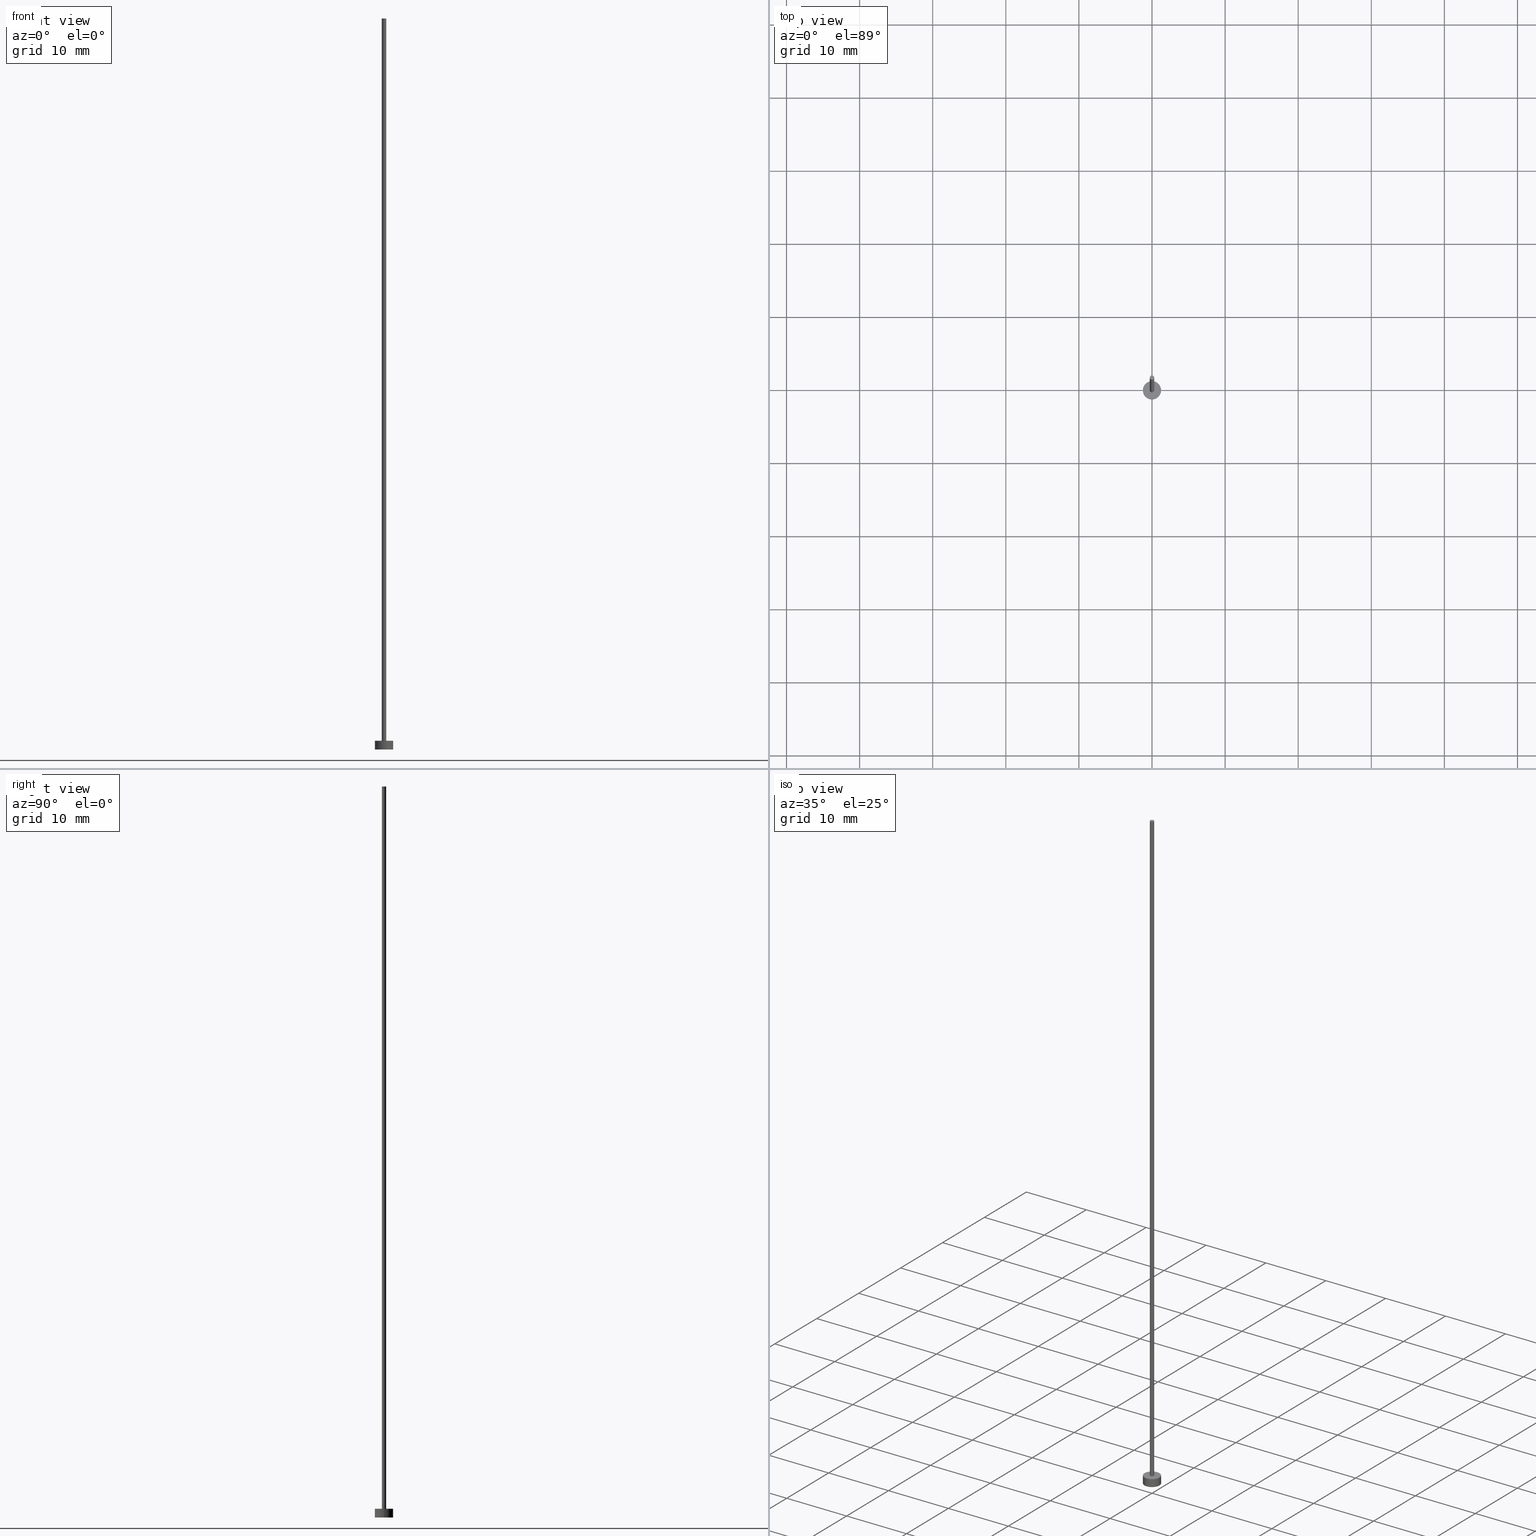
[diagram: canonical four-view strip — front | top / right | iso, engineering-drawing reading convention]
A machine part, canonical four-view strip (front | top / right | iso — engineering-drawing reading convention). The complete STEP part file that produces these views, byte-faithful:
ISO-10303-21;
HEADER;
FILE_DESCRIPTION (( 'STEP AP203' ),
    '1' );
FILE_NAME ('b7fa.STEP',
    '2026-02-06T12:45:23',
    ( '' ),
    ( '' ),
    'SwSTEP 2.0',
    'SolidWorks 2019',
    '' );
FILE_SCHEMA (( 'CONFIG_CONTROL_DESIGN' ));
ENDSEC;

DATA;
#1 = EDGE_CURVE ( 'NONE', #127, #232, #187, .T. ) ;
#2 = APPROVAL_DATE_TIME ( #209, #95 ) ;
#3 = AXIS2_PLACEMENT_3D ( 'NONE', #34, #226, #188 ) ;
#4 = APPROVAL_DATE_TIME ( #133, #201 ) ;
#5 = CIRCLE ( 'NONE', #230, 0.2999999999999999889 ) ;
#6 = APPROVAL_PERSON_ORGANIZATION ( #65, #201, #174 ) ;
#7 = DIRECTION ( 'NONE',  ( -0.000000000000000000, -0.000000000000000000, -1.000000000000000000 ) ) ;
#8 = APPROVAL ( #72, 'NEUR�EN�' ) ;
#9 = DIRECTION ( 'NONE',  ( 0.000000000000000000, 0.000000000000000000, 1.000000000000000000 ) ) ;
#10 = CARTESIAN_POINT ( 'NONE',  ( 1.250000000000000000, 1.530808498934191571E-16, 1.199999999999999956 ) ) ;
#11 = AXIS2_PLACEMENT_3D ( 'NONE', #22, #79, #64 ) ;
#12 = DIRECTION ( 'NONE',  ( -0.000000000000000000, -0.000000000000000000, -1.000000000000000000 ) ) ;
#13 = ORIENTED_EDGE ( 'NONE', *, *, #102, .T. ) ;
#14 = EDGE_CURVE ( 'NONE', #232, #111, #214, .T. ) ;
#15 = LOCAL_TIME ( 13, 45, 23.00000000000000000, #96 ) ;
#16 = VERTEX_POINT ( 'NONE', #68 ) ;
#17 = DIRECTION ( 'NONE',  ( 0.000000000000000000, 0.000000000000000000, 1.000000000000000000 ) ) ;
#18 = PERSON_AND_ORGANIZATION_ROLE ( 'creator' ) ;
#19 = CARTESIAN_POINT ( 'NONE',  ( 0.000000000000000000, 0.000000000000000000, 1.199999999999999956 ) ) ;
#20 = VERTEX_POINT ( 'NONE', #122 ) ;
#21 = DATE_AND_TIME ( #151, #46 ) ;
#22 = CARTESIAN_POINT ( 'NONE',  ( 0.000000000000000000, 0.000000000000000000, 0.000000000000000000 ) ) ;
#23 = CIRCLE ( 'NONE', #118, 1.250000000000000000 ) ;
#24 = PERSON_AND_ORGANIZATION_ROLE ( 'classification_officer' ) ;
#25 = CYLINDRICAL_SURFACE ( 'NONE', #176, 0.2999999999999999889 ) ;
#26 = PERSON_AND_ORGANIZATION_ROLE ( 'creator' ) ;
#27 = FACE_OUTER_BOUND ( 'NONE', #51, .T. ) ;
#28 = APPLICATION_CONTEXT ( 'configuration controlled 3d designs of mechanical parts and assemblies' ) ;
#29 = DIRECTION ( 'NONE',  ( -1.000000000000000000, 0.000000000000000000, 0.000000000000000000 ) ) ;
#30 = APPLICATION_PROTOCOL_DEFINITION ( 'international standard', 'config_control_design', 1994, #91 ) ;
#31 = EDGE_LOOP ( 'NONE', ( #185, #54, #166, #253 ) ) ;
#32 = ORIENTED_EDGE ( 'NONE', *, *, #14, .F. ) ;
#33 = EDGE_CURVE ( 'NONE', #40, #20, #219, .T. ) ;
#34 = CARTESIAN_POINT ( 'NONE',  ( 0.000000000000000000, 0.000000000000000000, 100.0000000000000000 ) ) ;
#35 = VERTEX_POINT ( 'NONE', #179 ) ;
#36 =( NAMED_UNIT ( * ) PLANE_ANGLE_UNIT ( ) SI_UNIT ( $, .RADIAN. ) );
#37 = DIRECTION ( 'NONE',  ( 0.000000000000000000, 0.000000000000000000, 1.000000000000000000 ) ) ;
#38 = EDGE_CURVE ( 'NONE', #35, #207, #5, .T. ) ;
#39 = PERSON_AND_ORGANIZATION ( #73, #55 ) ;
#40 = VERTEX_POINT ( 'NONE', #222 ) ;
#41 = ADVANCED_FACE ( 'NONE', ( #165, #104 ), #89, .T. ) ;
#42 = VECTOR ( 'NONE', #7, 1000.000000000000000 ) ;
#43 = CARTESIAN_POINT ( 'NONE',  ( -1.250000000000000000, 0.000000000000000000, 0.000000000000000000 ) ) ;
#44 = DIRECTION ( 'NONE',  ( -1.000000000000000000, 0.000000000000000000, 0.000000000000000000 ) ) ;
#45 = VECTOR ( 'NONE', #120, 1000.000000000000000 ) ;
#46 = LOCAL_TIME ( 13, 45, 23.00000000000000000, #235 ) ;
#47 = DIRECTION ( 'NONE',  ( 1.000000000000000000, 0.000000000000000000, 0.000000000000000000 ) ) ;
#48 = CARTESIAN_POINT ( 'NONE',  ( 0.000000000000000000, 0.000000000000000000, 100.0000000000000000 ) ) ;
#49 = AXIS2_PLACEMENT_3D ( 'NONE', #184, #205, #153 ) ;
#50 = AXIS2_PLACEMENT_3D ( 'NONE', #210, #37, #116 ) ;
#51 = EDGE_LOOP ( 'NONE', ( #227, #190, #147, #32 ) ) ;
#52 = DIRECTION ( 'NONE',  ( 1.000000000000000000, 0.000000000000000000, 0.000000000000000000 ) ) ;
#53 = DIRECTION ( 'NONE',  ( 0.000000000000000000, 0.000000000000000000, 1.000000000000000000 ) ) ;
#54 = ORIENTED_EDGE ( 'NONE', *, *, #167, .F. ) ;
#55 = ORGANIZATION ( 'NEUR�EN�', 'NEUR�EN�', '' ) ;
#56 = AXIS2_PLACEMENT_3D ( 'NONE', #221, #200, #29 ) ;
#57 = ORIENTED_EDGE ( 'NONE', *, *, #197, .F. ) ;
#58 = APPROVAL_ROLE ( '' ) ;
#59 = ORIENTED_EDGE ( 'NONE', *, *, #180, .T. ) ;
#60 = APPLICATION_PROTOCOL_DEFINITION ( 'international standard', 'config_control_design', 1994, #28 ) ;
#61 = APPROVAL_STATUS ( 'not_yet_approved' ) ;
#62 = CARTESIAN_POINT ( 'NONE',  ( 0.000000000000000000, 0.000000000000000000, 0.000000000000000000 ) ) ;
#63 = COORDINATED_UNIVERSAL_TIME_OFFSET ( 1, 0, .AHEAD. ) ;
#64 = DIRECTION ( 'NONE',  ( 1.000000000000000000, 0.000000000000000000, -0.000000000000000000 ) ) ;
#65 = PERSON_AND_ORGANIZATION ( #73, #55 ) ;
#66 = VECTOR ( 'NONE', #71, 1000.000000000000000 ) ;
#67 = EDGE_CURVE ( 'NONE', #232, #127, #23, .T. ) ;
#68 = CARTESIAN_POINT ( 'NONE',  ( 1.250000000000000000, 1.530808498934191571E-16, 0.000000000000000000 ) ) ;
#69 = LINE ( 'NONE', #10, #45 ) ;
#70 = PERSON_AND_ORGANIZATION ( #73, #55 ) ;
#71 = DIRECTION ( 'NONE',  ( -0.000000000000000000, -0.000000000000000000, -1.000000000000000000 ) ) ;
#72 = APPROVAL_STATUS ( 'not_yet_approved' ) ;
#73 = PERSON ( 'NEUR�EN�', 'NEUR�EN�', 'NEUR�EN�', ('NEUR�EN�'), ('NEUR�EN�'), ('NEUR�EN�') ) ;
#74 = CARTESIAN_POINT ( 'NONE',  ( 0.000000000000000000, 0.000000000000000000, 1.199999999999999956 ) ) ;
#75 = ORIENTED_EDGE ( 'NONE', *, *, #67, .F. ) ;
#76 = DIRECTION ( 'NONE',  ( 0.000000000000000000, 0.000000000000000000, 1.000000000000000000 ) ) ;
#77 = APPROVAL_DATE_TIME ( #109, #8 ) ;
#78 = DIRECTION ( 'NONE',  ( 0.000000000000000000, 0.000000000000000000, 1.000000000000000000 ) ) ;
#79 = DIRECTION ( 'NONE',  ( 0.000000000000000000, 0.000000000000000000, 1.000000000000000000 ) ) ;
#80 = EDGE_LOOP ( 'NONE', ( #229, #170 ) ) ;
#81 = APPROVAL_PERSON_ORGANIZATION ( #70, #8, #121 ) ;
#82 =( LENGTH_UNIT ( ) NAMED_UNIT ( * ) SI_UNIT ( .MILLI., .METRE. ) );
#83 = SECURITY_CLASSIFICATION_LEVEL ( 'unclassified' ) ;
#84 = DATE_AND_TIME ( #215, #244 ) ;
#85 = EDGE_CURVE ( 'NONE', #20, #35, #106, .T. ) ;
#86 = ADVANCED_FACE ( 'NONE', ( #198 ), #117, .T. ) ;
#87 = VECTOR ( 'NONE', #12, 1000.000000000000000 ) ;
#88 = DIRECTION ( 'NONE',  ( 1.000000000000000000, 0.000000000000000000, 0.000000000000000000 ) ) ;
#89 = PLANE ( 'NONE',  #250 ) ;
#90 = CARTESIAN_POINT ( 'NONE',  ( 0.000000000000000000, 0.000000000000000000, 0.000000000000000000 ) ) ;
#91 = APPLICATION_CONTEXT ( 'configuration controlled 3d designs of mechanical parts and assemblies' ) ;
#92 = ORIENTED_EDGE ( 'NONE', *, *, #193, .F. ) ;
#93 = CC_DESIGN_APPROVAL ( #95, ( #108 ) ) ;
#94 = CARTESIAN_POINT ( 'NONE',  ( -1.250000000000000000, 0.000000000000000000, 1.199999999999999956 ) ) ;
#95 = APPROVAL ( #61, 'NEUR�EN�' ) ;
#96 = COORDINATED_UNIVERSAL_TIME_OFFSET ( 1, 0, .AHEAD. ) ;
#97 = APPROVAL_STATUS ( 'not_yet_approved' ) ;
#98 = AXIS2_PLACEMENT_3D ( 'NONE', #148, #76, #52 ) ;
#99 = CC_DESIGN_PERSON_AND_ORGANIZATION_ASSIGNMENT ( #39, #24, ( #173 ) ) ;
#100 = CARTESIAN_POINT ( 'NONE',  ( 0.000000000000000000, 0.000000000000000000, 1.199999999999999956 ) ) ;
#101 = LINE ( 'NONE', #136, #66 ) ;
#102 = EDGE_CURVE ( 'NONE', #40, #207, #101, .T. ) ;
#103 = EDGE_CURVE ( 'NONE', #127, #16, #69, .T. ) ;
#104 = FACE_OUTER_BOUND ( 'NONE', #80, .T. ) ;
#105 = CLOSED_SHELL ( 'NONE', ( #143, #132, #237, #41, #249, #123, #86 ) ) ;
#106 = LINE ( 'NONE', #183, #42 ) ;
#107 = EDGE_LOOP ( 'NONE', ( #236, #125 ) ) ;
#108 = PRODUCT_DEFINITION_FORMATION_WITH_SPECIFIED_SOURCE ( 'LIBOVOLN�', '', #144, .NOT_KNOWN. ) ;
#109 = DATE_AND_TIME ( #113, #161 ) ;
#110 = DIRECTION ( 'NONE',  ( 1.000000000000000000, 0.000000000000000000, 0.000000000000000000 ) ) ;
#111 = VERTEX_POINT ( 'NONE', #43 ) ;
#112 = CC_DESIGN_DATE_AND_TIME_ASSIGNMENT ( #21, #191, ( #186 ) ) ;
#113 = CALENDAR_DATE ( 2026, 6, 2 ) ;
#114 = FACE_OUTER_BOUND ( 'NONE', #172, .T. ) ;
#115 = CC_DESIGN_PERSON_AND_ORGANIZATION_ASSIGNMENT ( #126, #204, ( #144 ) ) ;
#116 = DIRECTION ( 'NONE',  ( 1.000000000000000000, 0.000000000000000000, 0.000000000000000000 ) ) ;
#117 = PLANE ( 'NONE',  #182 ) ;
#118 = AXIS2_PLACEMENT_3D ( 'NONE', #178, #140, #47 ) ;
#119 = DIRECTION ( 'NONE',  ( 1.000000000000000000, 0.000000000000000000, 0.000000000000000000 ) ) ;
#120 = DIRECTION ( 'NONE',  ( -0.000000000000000000, -0.000000000000000000, -1.000000000000000000 ) ) ;
#121 = APPROVAL_ROLE ( '' ) ;
#122 = CARTESIAN_POINT ( 'NONE',  ( -0.2999999999999999889, 0.000000000000000000, 100.0000000000000000 ) ) ;
#123 = ADVANCED_FACE ( 'NONE', ( #223 ), #25, .T. ) ;
#124 = AXIS2_PLACEMENT_3D ( 'NONE', #62, #78, #156 ) ;
#125 = ORIENTED_EDGE ( 'NONE', *, *, #33, .T. ) ;
#126 = PERSON_AND_ORGANIZATION ( #73, #55 ) ;
#127 = VERTEX_POINT ( 'NONE', #199 ) ;
#128 = ORIENTED_EDGE ( 'NONE', *, *, #38, .F. ) ;
#129 = ORIENTED_EDGE ( 'NONE', *, *, #193, .T. ) ;
#130 = CALENDAR_DATE ( 2026, 6, 2 ) ;
#131 = AXIS2_PLACEMENT_3D ( 'NONE', #19, #252, #192 ) ;
#132 = ADVANCED_FACE ( 'NONE', ( #27 ), #139, .T. ) ;
#133 = DATE_AND_TIME ( #195, #158 ) ;
#134 = COORDINATED_UNIVERSAL_TIME_OFFSET ( 1, 0, .AHEAD. ) ;
#135 =( GEOMETRIC_REPRESENTATION_CONTEXT ( 3 ) GLOBAL_UNCERTAINTY_ASSIGNED_CONTEXT ( ( #169 ) ) GLOBAL_UNIT_ASSIGNED_CONTEXT ( ( #82, #36, #194 ) ) REPRESENTATION_CONTEXT ( 'NONE', 'WORKASPACE' ) );
#136 = CARTESIAN_POINT ( 'NONE',  ( 0.2999999999999999889, 3.673940397442058882E-17, 100.0000000000000000 ) ) ;
#137 = CARTESIAN_POINT ( 'NONE',  ( 0.000000000000000000, 0.000000000000000000, 100.0000000000000000 ) ) ;
#138 = CC_DESIGN_SECURITY_CLASSIFICATION ( #173, ( #108 ) ) ;
#139 = CYLINDRICAL_SURFACE ( 'NONE', #56, 1.250000000000000000 ) ;
#140 = DIRECTION ( 'NONE',  ( 0.000000000000000000, 0.000000000000000000, 1.000000000000000000 ) ) ;
#141 = PRODUCT_DEFINITION_SHAPE ( 'NONE', 'NONE',  #186 ) ;
#142 = CC_DESIGN_DATE_AND_TIME_ASSIGNMENT ( #84, #240, ( #173 ) ) ;
#143 = ADVANCED_FACE ( 'NONE', ( #181 ), #171, .T. ) ;
#144 = PRODUCT ( 'b7fa', 'b7fa', '', ( #231 ) ) ;
#145 = ORIENTED_EDGE ( 'NONE', *, *, #180, .F. ) ;
#146 = ADVANCED_BREP_SHAPE_REPRESENTATION ( 'b7fa', ( #217, #98 ), #135 ) ;
#147 = ORIENTED_EDGE ( 'NONE', *, *, #197, .T. ) ;
#148 = CARTESIAN_POINT ( 'NONE',  ( 0.000000000000000000, 0.000000000000000000, 0.000000000000000000 ) ) ;
#149 = EDGE_LOOP ( 'NONE', ( #255, #13, #129, #247 ) ) ;
#150 = APPROVAL_PERSON_ORGANIZATION ( #233, #95, #58 ) ;
#151 = CALENDAR_DATE ( 2026, 6, 2 ) ;
#152 = FACE_OUTER_BOUND ( 'NONE', #203, .T. ) ;
#153 = DIRECTION ( 'NONE',  ( -1.000000000000000000, 0.000000000000000000, 0.000000000000000000 ) ) ;
#154 = EDGE_LOOP ( 'NONE', ( #128, #92 ) ) ;
#155 = COORDINATED_UNIVERSAL_TIME_OFFSET ( 1, 0, .AHEAD. ) ;
#156 = DIRECTION ( 'NONE',  ( 1.000000000000000000, 0.000000000000000000, 0.000000000000000000 ) ) ;
#157 = AXIS2_PLACEMENT_3D ( 'NONE', #163, #245, #88 ) ;
#158 = LOCAL_TIME ( 13, 45, 23.00000000000000000, #134 ) ;
#159 = SHAPE_DEFINITION_REPRESENTATION ( #141, #146 ) ;
#160 = CIRCLE ( 'NONE', #3, 0.2999999999999999889 ) ;
#161 = LOCAL_TIME ( 13, 45, 23.00000000000000000, #155 ) ;
#162 = DESIGN_CONTEXT ( 'detailed design', #91, 'design' ) ;
#163 = CARTESIAN_POINT ( 'NONE',  ( 0.000000000000000000, 0.000000000000000000, 100.0000000000000000 ) ) ;
#164 = CC_DESIGN_PERSON_AND_ORGANIZATION_ASSIGNMENT ( #189, #18, ( #186 ) ) ;
#165 = FACE_BOUND ( 'NONE', #154, .T. ) ;
#166 = ORIENTED_EDGE ( 'NONE', *, *, #85, .T. ) ;
#167 = EDGE_CURVE ( 'NONE', #20, #40, #160, .T. ) ;
#168 = DIRECTION ( 'NONE',  ( 1.000000000000000000, 0.000000000000000000, 0.000000000000000000 ) ) ;
#169 = UNCERTAINTY_MEASURE_WITH_UNIT (LENGTH_MEASURE( 1.000000000000000082E-05 ), #82, 'distance_accuracy_value', 'NONE');
#170 = ORIENTED_EDGE ( 'NONE', *, *, #1, .T. ) ;
#171 = CYLINDRICAL_SURFACE ( 'NONE', #49, 0.2999999999999999889 ) ;
#172 = EDGE_LOOP ( 'NONE', ( #225, #75, #208, #59 ) ) ;
#173 = SECURITY_CLASSIFICATION ( '', '', #83 ) ;
#174 = APPROVAL_ROLE ( '' ) ;
#175 = PERSON_AND_ORGANIZATION ( #73, #55 ) ;
#176 = AXIS2_PLACEMENT_3D ( 'NONE', #137, #218, #44 ) ;
#177 = CIRCLE ( 'NONE', #124, 1.250000000000000000 ) ;
#178 = CARTESIAN_POINT ( 'NONE',  ( 0.000000000000000000, 0.000000000000000000, 1.199999999999999956 ) ) ;
#179 = CARTESIAN_POINT ( 'NONE',  ( -0.2999999999999999889, 0.000000000000000000, 1.199999999999999956 ) ) ;
#180 = EDGE_CURVE ( 'NONE', #111, #16, #224, .T. ) ;
#181 = FACE_OUTER_BOUND ( 'NONE', #149, .T. ) ;
#182 = AXIS2_PLACEMENT_3D ( 'NONE', #48, #202, #243 ) ;
#183 = CARTESIAN_POINT ( 'NONE',  ( -0.2999999999999999889, 0.000000000000000000, 100.0000000000000000 ) ) ;
#184 = CARTESIAN_POINT ( 'NONE',  ( 0.000000000000000000, 0.000000000000000000, 100.0000000000000000 ) ) ;
#185 = ORIENTED_EDGE ( 'NONE', *, *, #102, .F. ) ;
#186 = PRODUCT_DEFINITION ( 'NEZN�M�', '', #108, #162 ) ;
#187 = CIRCLE ( 'NONE', #50, 1.250000000000000000 ) ;
#188 = DIRECTION ( 'NONE',  ( 1.000000000000000000, 0.000000000000000000, 0.000000000000000000 ) ) ;
#189 = PERSON_AND_ORGANIZATION ( #73, #55 ) ;
#190 = ORIENTED_EDGE ( 'NONE', *, *, #103, .T. ) ;
#191 = DATE_TIME_ROLE ( 'creation_date' ) ;
#192 = DIRECTION ( 'NONE',  ( -1.000000000000000000, 0.000000000000000000, 0.000000000000000000 ) ) ;
#193 = EDGE_CURVE ( 'NONE', #207, #35, #216, .T. ) ;
#194 =( NAMED_UNIT ( * ) SI_UNIT ( $, .STERADIAN. ) SOLID_ANGLE_UNIT ( ) );
#195 = CALENDAR_DATE ( 2026, 6, 2 ) ;
#196 = CARTESIAN_POINT ( 'NONE',  ( -1.250000000000000000, 0.000000000000000000, 1.199999999999999956 ) ) ;
#197 = EDGE_CURVE ( 'NONE', #16, #111, #177, .T. ) ;
#198 = FACE_OUTER_BOUND ( 'NONE', #107, .T. ) ;
#199 = CARTESIAN_POINT ( 'NONE',  ( 1.250000000000000000, 1.530808498934191571E-16, 1.199999999999999956 ) ) ;
#200 = DIRECTION ( 'NONE',  ( -0.000000000000000000, -0.000000000000000000, -1.000000000000000000 ) ) ;
#201 = APPROVAL ( #97, 'NEUR�EN�' ) ;
#202 = DIRECTION ( 'NONE',  ( 0.000000000000000000, 0.000000000000000000, 1.000000000000000000 ) ) ;
#203 = EDGE_LOOP ( 'NONE', ( #145, #57 ) ) ;
#204 = PERSON_AND_ORGANIZATION_ROLE ( 'design_owner' ) ;
#205 = DIRECTION ( 'NONE',  ( -0.000000000000000000, -0.000000000000000000, -1.000000000000000000 ) ) ;
#206 = CC_DESIGN_APPROVAL ( #201, ( #173 ) ) ;
#207 = VERTEX_POINT ( 'NONE', #238 ) ;
#208 = ORIENTED_EDGE ( 'NONE', *, *, #14, .T. ) ;
#209 = DATE_AND_TIME ( #130, #15 ) ;
#210 = CARTESIAN_POINT ( 'NONE',  ( 0.000000000000000000, 0.000000000000000000, 1.199999999999999956 ) ) ;
#211 = CC_DESIGN_PERSON_AND_ORGANIZATION_ASSIGNMENT ( #213, #26, ( #108 ) ) ;
#212 = PERSON_AND_ORGANIZATION_ROLE ( 'design_supplier' ) ;
#213 = PERSON_AND_ORGANIZATION ( #73, #55 ) ;
#214 = LINE ( 'NONE', #196, #87 ) ;
#215 = CALENDAR_DATE ( 2026, 6, 2 ) ;
#216 = CIRCLE ( 'NONE', #220, 0.2999999999999999889 ) ;
#217 = MANIFOLD_SOLID_BREP ( 'P�idat vysunut�m3', #105 ) ;
#218 = DIRECTION ( 'NONE',  ( -0.000000000000000000, -0.000000000000000000, -1.000000000000000000 ) ) ;
#219 = CIRCLE ( 'NONE', #157, 0.2999999999999999889 ) ;
#220 = AXIS2_PLACEMENT_3D ( 'NONE', #228, #17, #110 ) ;
#221 = CARTESIAN_POINT ( 'NONE',  ( 0.000000000000000000, 0.000000000000000000, 1.199999999999999956 ) ) ;
#222 = CARTESIAN_POINT ( 'NONE',  ( 0.2999999999999999889, 3.673940397442058882E-17, 100.0000000000000000 ) ) ;
#223 = FACE_OUTER_BOUND ( 'NONE', #31, .T. ) ;
#224 = CIRCLE ( 'NONE', #251, 1.250000000000000000 ) ;
#225 = ORIENTED_EDGE ( 'NONE', *, *, #103, .F. ) ;
#226 = DIRECTION ( 'NONE',  ( 0.000000000000000000, 0.000000000000000000, 1.000000000000000000 ) ) ;
#227 = ORIENTED_EDGE ( 'NONE', *, *, #1, .F. ) ;
#228 = CARTESIAN_POINT ( 'NONE',  ( 0.000000000000000000, 0.000000000000000000, 1.199999999999999956 ) ) ;
#229 = ORIENTED_EDGE ( 'NONE', *, *, #67, .T. ) ;
#230 = AXIS2_PLACEMENT_3D ( 'NONE', #100, #9, #119 ) ;
#231 = MECHANICAL_CONTEXT ( 'NONE', #28, 'mechanical' ) ;
#232 = VERTEX_POINT ( 'NONE', #94 ) ;
#233 = PERSON_AND_ORGANIZATION ( #73, #55 ) ;
#234 = PLANE ( 'NONE',  #11 ) ;
#235 = COORDINATED_UNIVERSAL_TIME_OFFSET ( 1, 0, .AHEAD. ) ;
#236 = ORIENTED_EDGE ( 'NONE', *, *, #167, .T. ) ;
#237 = ADVANCED_FACE ( 'NONE', ( #114 ), #254, .T. ) ;
#238 = CARTESIAN_POINT ( 'NONE',  ( 0.2999999999999999889, 3.673940397442058882E-17, 1.199999999999999956 ) ) ;
#239 = CC_DESIGN_APPROVAL ( #8, ( #186 ) ) ;
#240 = DATE_TIME_ROLE ( 'classification_date' ) ;
#241 = DIRECTION ( 'NONE',  ( 0.000000000000000000, 0.000000000000000000, 1.000000000000000000 ) ) ;
#242 = CC_DESIGN_PERSON_AND_ORGANIZATION_ASSIGNMENT ( #175, #212, ( #108 ) ) ;
#243 = DIRECTION ( 'NONE',  ( 1.000000000000000000, 0.000000000000000000, -0.000000000000000000 ) ) ;
#244 = LOCAL_TIME ( 13, 45, 23.00000000000000000, #63 ) ;
#245 = DIRECTION ( 'NONE',  ( 0.000000000000000000, 0.000000000000000000, 1.000000000000000000 ) ) ;
#246 = DIRECTION ( 'NONE',  ( 1.000000000000000000, 0.000000000000000000, -0.000000000000000000 ) ) ;
#247 = ORIENTED_EDGE ( 'NONE', *, *, #85, .F. ) ;
#248 = PRODUCT_RELATED_PRODUCT_CATEGORY ( 'detail', '', ( #144 ) ) ;
#249 = ADVANCED_FACE ( 'NONE', ( #152 ), #234, .F. ) ;
#250 = AXIS2_PLACEMENT_3D ( 'NONE', #74, #241, #246 ) ;
#251 = AXIS2_PLACEMENT_3D ( 'NONE', #90, #53, #168 ) ;
#252 = DIRECTION ( 'NONE',  ( -0.000000000000000000, -0.000000000000000000, -1.000000000000000000 ) ) ;
#253 = ORIENTED_EDGE ( 'NONE', *, *, #38, .T. ) ;
#254 = CYLINDRICAL_SURFACE ( 'NONE', #131, 1.250000000000000000 ) ;
#255 = ORIENTED_EDGE ( 'NONE', *, *, #33, .F. ) ;
ENDSEC;
END-ISO-10303-21;
